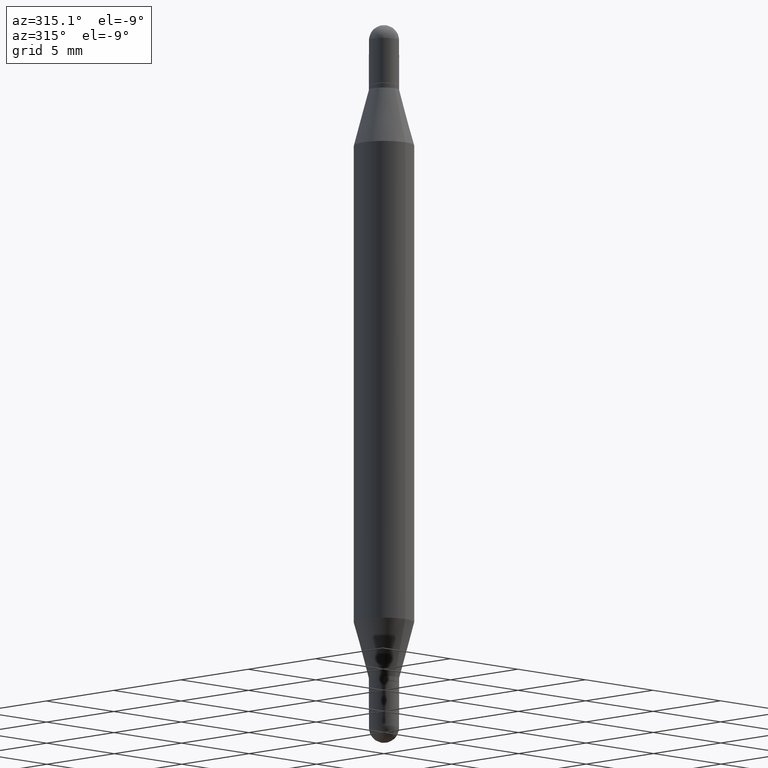
[diagram: clean part render]
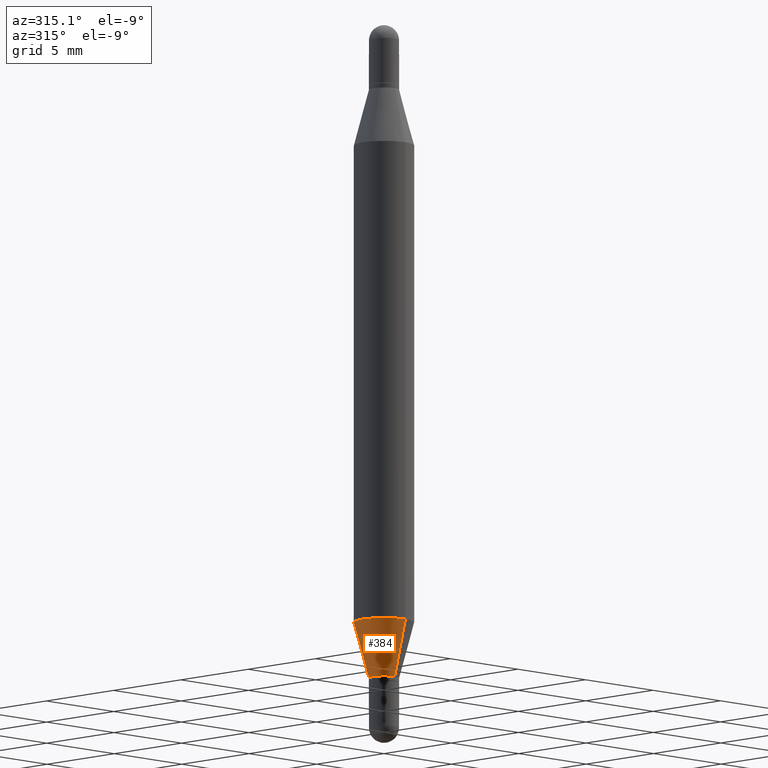
[diagram: same view with one face highlighted and labeled with its STEP entity id]
A machine part, auxiliary view. The second image highlights one B-rep face of the part: STEP entity #384.
In plain terms, the highlighted conical surface has half-angle 15 deg.
Its self-contained STEP definition (entity closure, byte-faithful):
#10 = EDGE_CURVE ( 'NONE', #238, #1048, #527, .T. ) ;
#26 = DIRECTION ( 'NONE',  ( -6.982962677686265133E-15, -1.000000000000000000, 0.000000000000000000 ) ) ;
#31 = DIRECTION ( 'NONE',  ( -2.445713532774294348E-29, 3.491130876438499133E-15, 1.000000000000000000 ) ) ;
#101 = LINE ( 'NONE', #713, #373 ) ;
#160 = CARTESIAN_POINT ( 'NONE',  ( -2.182175836776599662E-16, -0.03125000000000441314, -1.364999999999999991 ) ) ;
#211 = CARTESIAN_POINT ( 'NONE',  ( 3.338398972236912231E-29, -4.765393646338551065E-15, -1.364999999999999991 ) ) ;
#221 = DIRECTION ( 'NONE',  ( 1.839019923739600710E-15, 0.2588190451025250138, 0.9659258262890670910 ) ) ;
#238 = VERTEX_POINT ( 'NONE', #787 ) ;
#293 = DIRECTION ( 'NONE',  ( -2.445713532774294348E-29, 3.491130876438499133E-15, 1.000000000000000000 ) ) ;
#341 = CIRCLE ( 'NONE', #1028, 0.06250000000000000000 ) ;
#373 = VECTOR ( 'NONE', #525, 39.37007874015748143 ) ;
#384 = ADVANCED_FACE ( 'NONE', ( #1046 ), #700, .T. ) ;
#450 = CARTESIAN_POINT ( 'NONE',  ( 3.338398972236912231E-29, -4.765393646338551065E-15, -1.364999999999999991 ) ) ;
#465 = EDGE_LOOP ( 'NONE', ( #873, #720, #496, #868 ) ) ;
#496 = ORIENTED_EDGE ( 'NONE', *, *, #747, .T. ) ;
#509 = CARTESIAN_POINT ( 'NONE',  ( -4.364351673553611010E-16, -0.06250000000000435763, -1.248373412263471538 ) ) ;
#525 = DIRECTION ( 'NONE',  ( -1.807323732225330534E-15, -0.2588190451025182415, 0.9659258262890689783 ) ) ;
#527 = CIRCLE ( 'NONE', #808, 0.03124999999999964959 ) ;
#558 = DIRECTION ( 'NONE',  ( -2.445713532774294348E-29, 3.491130876438499133E-15, 1.000000000000000000 ) ) ;
#564 = CARTESIAN_POINT ( 'NONE',  ( 3.053163748328396024E-29, -4.358234964877894305E-15, -1.248373412263471760 ) ) ;
#693 = VERTEX_POINT ( 'NONE', #509 ) ;
#700 = CONICAL_SURFACE ( 'NONE', #1044, 0.03124999999999964959, 0.2617993877991502960 ) ;
#713 = CARTESIAN_POINT ( 'NONE',  ( -2.182175836776599662E-16, -0.03125000000000441314, -1.364999999999999991 ) ) ;
#720 = ORIENTED_EDGE ( 'NONE', *, *, #10, .T. ) ;
#744 = LINE ( 'NONE', #1075, #950 ) ;
#747 = EDGE_CURVE ( 'NONE', #1048, #693, #101, .T. ) ;
#761 = DIRECTION ( 'NONE',  ( -6.982962677686265922E-15, -1.000000000000000000, 4.370956789862821150E-15 ) ) ;
#787 = CARTESIAN_POINT ( 'NONE',  ( 2.220446049250623695E-16, 0.03124999999999488257, -1.364999999999999991 ) ) ;
#808 = AXIS2_PLACEMENT_3D ( 'NONE', #450, #31, #26 ) ;
#868 = ORIENTED_EDGE ( 'NONE', *, *, #1095, .F. ) ;
#873 = ORIENTED_EDGE ( 'NONE', *, *, #909, .F. ) ;
#894 = VERTEX_POINT ( 'NONE', #910 ) ;
#909 = EDGE_CURVE ( 'NONE', #238, #894, #744, .T. ) ;
#910 = CARTESIAN_POINT ( 'NONE',  ( 4.287811248607389158E-16, 0.06249999999999563544, -1.248373412263471982 ) ) ;
#950 = VECTOR ( 'NONE', #221, 39.37007874015748143 ) ;
#978 = DIRECTION ( 'NONE',  ( -6.982962677686265133E-15, -1.000000000000000000, 0.000000000000000000 ) ) ;
#1028 = AXIS2_PLACEMENT_3D ( 'NONE', #564, #558, #761 ) ;
#1044 = AXIS2_PLACEMENT_3D ( 'NONE', #211, #293, #978 ) ;
#1046 = FACE_OUTER_BOUND ( 'NONE', #465, .T. ) ;
#1048 = VERTEX_POINT ( 'NONE', #160 ) ;
#1075 = CARTESIAN_POINT ( 'NONE',  ( 2.220446049250621723E-16, 0.03124999999999488604, -1.364999999999999991 ) ) ;
#1095 = EDGE_CURVE ( 'NONE', #894, #693, #341, .T. ) ;